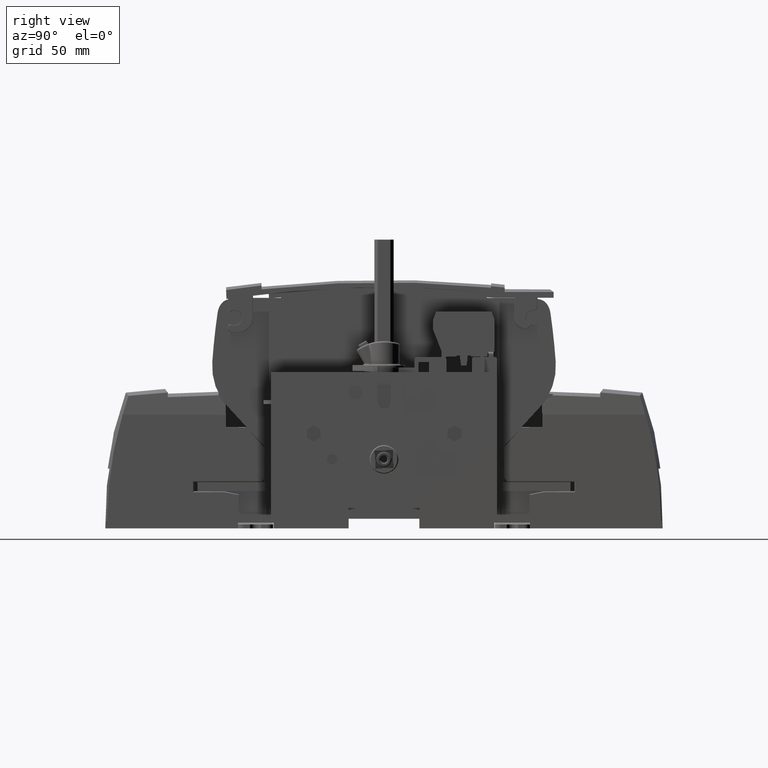
[diagram: clean part render]
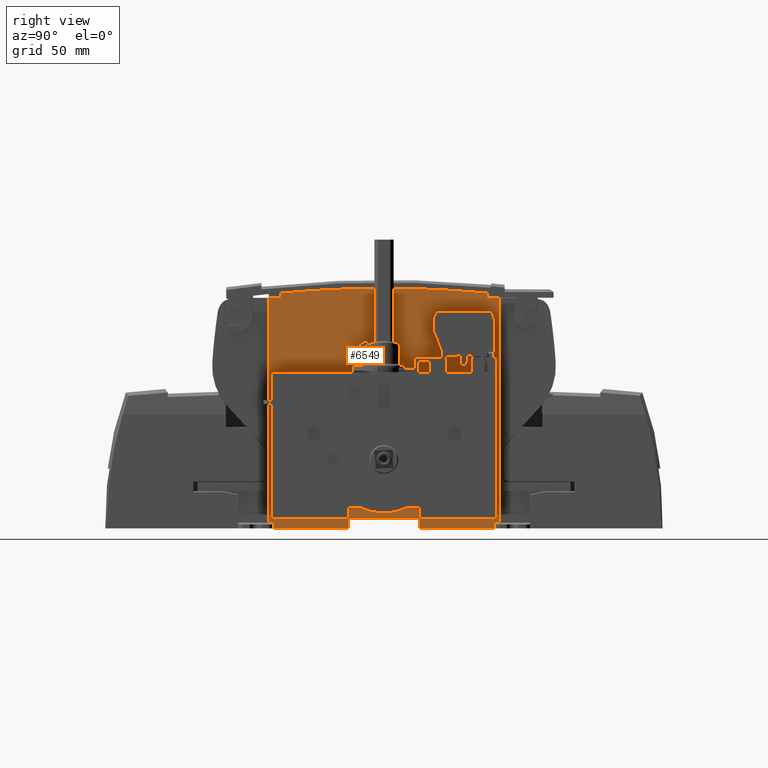
[diagram: same view with one face highlighted and labeled with its STEP entity id]
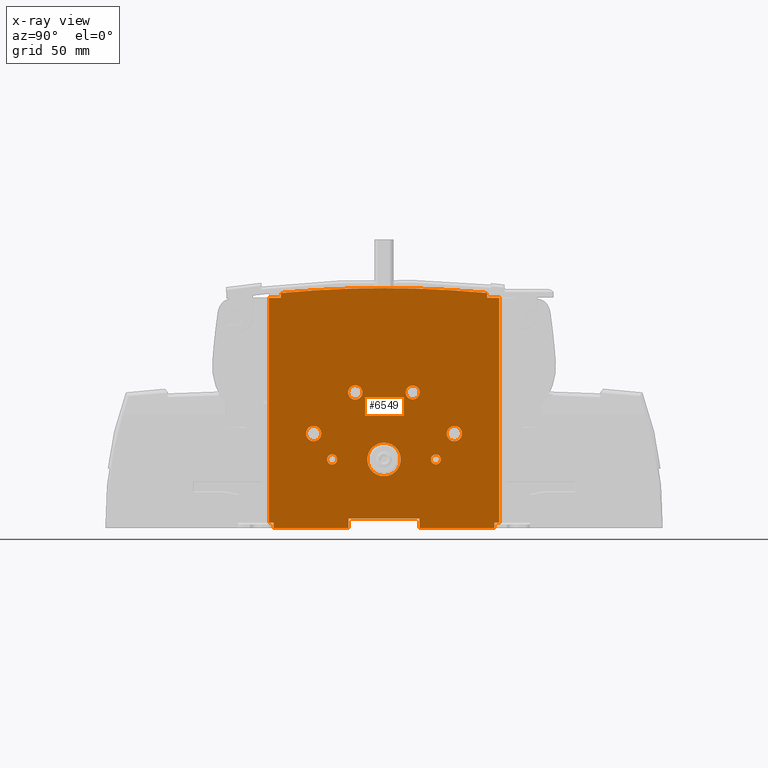
[diagram: x-ray of the same camera — body ghosted, the highlighted face saturated]
A machine part, right view. The second image highlights one B-rep face of the part: STEP entity #6549.
The next image is the same camera in x-ray: the body ghosted, the highlighted face saturated — about 0% of this face is hidden behind the body in this view.
In plain terms, the highlighted planar face has unit normal (1, 0, 0).
Its self-contained STEP definition (entity closure, byte-faithful):
#1403=PLANE('',#48421);
#6549=ADVANCED_FACE('',(#8898,#8899,#8900,#8901,#8902,#8903,#8904,#8905),
#1403,.T.);
#8351=CIRCLE('',#48412,566.856628699517);
#8352=CIRCLE('',#48413,566.856628699517);
#8353=CIRCLE('',#48414,2.65);
#8354=CIRCLE('',#48415,8.75);
#8355=CIRCLE('',#48416,3.65);
#8356=CIRCLE('',#48417,2.6);
#8357=CIRCLE('',#48418,4.);
#8358=CIRCLE('',#48419,3.75);
#8359=CIRCLE('',#48420,4.);
#8898=FACE_BOUND('',#10725,.T.);
#8899=FACE_BOUND('',#10726,.T.);
#8900=FACE_BOUND('',#10727,.T.);
#8901=FACE_BOUND('',#10728,.T.);
#8902=FACE_BOUND('',#10729,.T.);
#8903=FACE_BOUND('',#10730,.T.);
#8904=FACE_BOUND('',#10731,.T.);
#8905=FACE_BOUND('',#10732,.T.);
#10725=EDGE_LOOP('',(#20058,#20059,#20060,#20061,#20062,#20063,#20064,#20065,
#20066,#20067,#20068,#20069,#20070,#20071,#20072,#20073,#20074));
#10726=EDGE_LOOP('',(#20075));
#10727=EDGE_LOOP('',(#20076));
#10728=EDGE_LOOP('',(#20077));
#10729=EDGE_LOOP('',(#20078));
#10730=EDGE_LOOP('',(#20079));
#10731=EDGE_LOOP('',(#20080));
#10732=EDGE_LOOP('',(#20081));
#20058=ORIENTED_EDGE('',*,*,#33797,.T.);
#20059=ORIENTED_EDGE('',*,*,#33551,.T.);
#20060=ORIENTED_EDGE('',*,*,#33760,.T.);
#20061=ORIENTED_EDGE('',*,*,#33564,.T.);
#20062=ORIENTED_EDGE('',*,*,#33581,.T.);
#20063=ORIENTED_EDGE('',*,*,#33597,.F.);
#20064=ORIENTED_EDGE('',*,*,#33578,.F.);
#20065=ORIENTED_EDGE('',*,*,#33557,.F.);
#20066=ORIENTED_EDGE('',*,*,#33555,.F.);
#20067=ORIENTED_EDGE('',*,*,#33542,.F.);
#20068=ORIENTED_EDGE('',*,*,#33771,.F.);
#20069=ORIENTED_EDGE('',*,*,#33722,.F.);
#20070=ORIENTED_EDGE('',*,*,#33798,.F.);
#20071=ORIENTED_EDGE('',*,*,#33799,.F.);
#20072=ORIENTED_EDGE('',*,*,#33800,.T.);
#20073=ORIENTED_EDGE('',*,*,#33801,.T.);
#20074=ORIENTED_EDGE('',*,*,#33682,.T.);
#20075=ORIENTED_EDGE('',*,*,#33802,.T.);
#20076=ORIENTED_EDGE('',*,*,#33803,.F.);
#20077=ORIENTED_EDGE('',*,*,#33804,.F.);
#20078=ORIENTED_EDGE('',*,*,#33805,.F.);
#20079=ORIENTED_EDGE('',*,*,#33806,.F.);
#20080=ORIENTED_EDGE('',*,*,#33807,.T.);
#20081=ORIENTED_EDGE('',*,*,#33808,.F.);
#27848=VERTEX_POINT('',#73235);
#27849=VERTEX_POINT('',#73237);
#27855=VERTEX_POINT('',#73252);
#27856=VERTEX_POINT('',#73254);
#27859=VERTEX_POINT('',#73262);
#27860=VERTEX_POINT('',#73266);
#27863=VERTEX_POINT('',#73276);
#27864=VERTEX_POINT('',#73278);
#27875=VERTEX_POINT('',#73308);
#27876=VERTEX_POINT('',#73312);
#27949=VERTEX_POINT('',#73508);
#27950=VERTEX_POINT('',#73510);
#27973=VERTEX_POINT('',#73588);
#27974=VERTEX_POINT('',#73590);
#28013=VERTEX_POINT('',#73787);
#28014=VERTEX_POINT('',#73789);
#28015=VERTEX_POINT('',#73791);
#28016=VERTEX_POINT('',#73794);
#28017=VERTEX_POINT('',#73796);
#28018=VERTEX_POINT('',#73798);
#28019=VERTEX_POINT('',#73800);
#28020=VERTEX_POINT('',#73802);
#28021=VERTEX_POINT('',#73804);
#28022=VERTEX_POINT('',#73806);
#33542=EDGE_CURVE('',#27848,#27849,#39182,.T.);
#33551=EDGE_CURVE('',#27856,#27855,#39191,.T.);
#33555=EDGE_CURVE('',#27849,#27859,#39195,.T.);
#33557=EDGE_CURVE('',#27859,#27860,#39197,.T.);
#33564=EDGE_CURVE('',#27863,#27864,#39204,.T.);
#33578=EDGE_CURVE('',#27860,#27875,#39218,.T.);
#33581=EDGE_CURVE('',#27864,#27876,#39221,.T.);
#33597=EDGE_CURVE('',#27875,#27876,#39236,.T.);
#33682=EDGE_CURVE('',#27950,#27949,#39309,.T.);
#33722=EDGE_CURVE('',#27973,#27974,#39344,.T.);
#33760=EDGE_CURVE('',#27855,#27863,#39374,.T.);
#33771=EDGE_CURVE('',#27974,#27848,#39383,.T.);
#33797=EDGE_CURVE('',#27949,#27856,#39405,.T.);
#33798=EDGE_CURVE('',#28013,#27973,#39406,.T.);
#33799=EDGE_CURVE('',#28014,#28013,#8351,.T.);
#33800=EDGE_CURVE('',#28014,#28015,#8352,.T.);
#33801=EDGE_CURVE('',#28015,#27950,#39407,.T.);
#33802=EDGE_CURVE('',#28016,#28016,#8353,.T.);
#33803=EDGE_CURVE('',#28017,#28017,#8354,.T.);
#33804=EDGE_CURVE('',#28018,#28018,#8355,.T.);
#33805=EDGE_CURVE('',#28019,#28019,#8356,.T.);
#33806=EDGE_CURVE('',#28020,#28020,#8357,.T.);
#33807=EDGE_CURVE('',#28021,#28021,#8358,.T.);
#33808=EDGE_CURVE('',#28022,#28022,#8359,.T.);
#39182=LINE('',#73236,#44255);
#39191=LINE('',#73253,#44264);
#39195=LINE('',#73261,#44268);
#39197=LINE('',#73265,#44270);
#39204=LINE('',#73279,#44277);
#39218=LINE('',#73307,#44291);
#39221=LINE('',#73313,#44294);
#39236=LINE('',#73346,#44309);
#39309=LINE('',#73509,#44382);
#39344=LINE('',#73589,#44417);
#39374=LINE('',#73708,#44447);
#39383=LINE('',#73732,#44456);
#39405=LINE('',#73785,#44478);
#39406=LINE('',#73786,#44479);
#39407=LINE('',#73792,#44480);
#44255=VECTOR('',#56245,1.);
#44264=VECTOR('',#56256,1.);
#44268=VECTOR('',#56262,1.);
#44270=VECTOR('',#56266,1.);
#44277=VECTOR('',#56277,1.);
#44291=VECTOR('',#56299,1.);
#44294=VECTOR('',#56304,1.);
#44309=VECTOR('',#56333,1.);
#44382=VECTOR('',#56462,1.);
#44417=VECTOR('',#56531,1.);
#44447=VECTOR('',#56653,1.);
#44456=VECTOR('',#56682,1.);
#44478=VECTOR('',#56726,1.);
#44479=VECTOR('',#56727,1.);
#44480=VECTOR('',#56732,1.);
#48412=AXIS2_PLACEMENT_3D('',#73788,#56728,#56729);
#48413=AXIS2_PLACEMENT_3D('',#73790,#56730,#56731);
#48414=AXIS2_PLACEMENT_3D('',#73793,#56733,#56734);
#48415=AXIS2_PLACEMENT_3D('',#73795,#56735,#56736);
#48416=AXIS2_PLACEMENT_3D('',#73797,#56737,#56738);
#48417=AXIS2_PLACEMENT_3D('',#73799,#56739,#56740);
#48418=AXIS2_PLACEMENT_3D('',#73801,#56741,#56742);
#48419=AXIS2_PLACEMENT_3D('',#73803,#56743,#56744);
#48420=AXIS2_PLACEMENT_3D('',#73805,#56745,#56746);
#48421=AXIS2_PLACEMENT_3D('',#73807,#56747,#56748);
#56245=DIRECTION('',(0.,-1.,0.));
#56256=DIRECTION('',(0.,1.,0.));
#56262=DIRECTION('',(0.,0.,-1.));
#56266=DIRECTION('',(0.,-1.,2.22044604925025E-016));
#56277=DIRECTION('',(0.,1.,2.22044604925025E-016));
#56299=DIRECTION('',(0.,0.,1.));
#56304=DIRECTION('',(0.,0.,1.));
#56333=DIRECTION('',(0.,-1.,-3.75013847419274E-016));
#56462=DIRECTION('',(0.,-1.,0.));
#56531=DIRECTION('',(0.,1.,0.));
#56653=DIRECTION('',(0.,0.,-1.));
#56682=DIRECTION('',(0.,0.,-1.));
#56726=DIRECTION('',(0.,0.,-1.));
#56727=DIRECTION('',(0.,-2.09215462833515E-013,-1.));
#56728=DIRECTION('',(-1.,0.,0.));
#56729=DIRECTION('',(0.,-1.,-9.79280269838452E-017));
#56730=DIRECTION('',(1.,0.,0.));
#56731=DIRECTION('',(0.,1.,-9.79280269838452E-017));
#56732=DIRECTION('',(0.,2.09215462833515E-013,-1.));
#56733=DIRECTION('',(-1.,0.,0.));
#56734=DIRECTION('',(0.,-1.,-6.12323399573677E-017));
#56735=DIRECTION('',(1.,0.,0.));
#56736=DIRECTION('',(0.,0.,-1.));
#56737=DIRECTION('',(1.,0.,0.));
#56738=DIRECTION('',(0.,1.,0.));
#56739=DIRECTION('',(1.,0.,0.));
#56740=DIRECTION('',(0.,1.,-1.83697019872103E-016));
#56741=DIRECTION('',(1.,0.,0.));
#56742=DIRECTION('',(0.,0.999999999999999,0.));
#56743=DIRECTION('',(-1.,0.,0.));
#56744=DIRECTION('',(0.,-1.,0.));
#56745=DIRECTION('',(1.,0.,0.));
#56746=DIRECTION('',(0.,1.,0.));
#56747=DIRECTION('',(1.,0.,0.));
#56748=DIRECTION('',(0.,0.,-1.));
#73235=CARTESIAN_POINT('',(75.,60.2,-33.));
#73236=CARTESIAN_POINT('',(75.,18.5030338257067,-33.));
#73237=CARTESIAN_POINT('',(75.,57.7,-33.));
#73252=CARTESIAN_POINT('',(75.,-57.7,-33.));
#73253=CARTESIAN_POINT('',(75.,-69.5,-33.));
#73254=CARTESIAN_POINT('',(75.,-60.2,-33.));
#73261=CARTESIAN_POINT('',(75.,57.7,-31.));
#73262=CARTESIAN_POINT('',(75.,57.7,-36.));
#73265=CARTESIAN_POINT('',(75.,62.5,-36.));
#73266=CARTESIAN_POINT('',(75.,18.5030338257067,-36.));
#73276=CARTESIAN_POINT('',(75.,-57.7,-36.));
#73278=CARTESIAN_POINT('',(75.,-18.5030338257066,-36.));
#73279=CARTESIAN_POINT('',(75.,-62.5,-36.));
#73307=CARTESIAN_POINT('',(75.,18.5030338257067,60.8279400900079));
#73308=CARTESIAN_POINT('',(75.,18.5030338257067,-31.));
#73312=CARTESIAN_POINT('',(75.,-18.5030338257066,-31.));
#73313=CARTESIAN_POINT('',(75.,-18.5030338257066,60.8279400900079));
#73346=CARTESIAN_POINT('',(75.,18.5030338257067,-31.));
#73508=CARTESIAN_POINT('',(75.,-60.2,84.4123947148));
#73509=CARTESIAN_POINT('',(75.,-53.7999999999991,84.4123947148));
#73510=CARTESIAN_POINT('',(75.,-53.7999999999991,84.4123947148));
#73588=CARTESIAN_POINT('',(75.,53.7999999999991,84.4123947148));
#73589=CARTESIAN_POINT('',(75.,53.7999999999991,84.4123947148));
#73590=CARTESIAN_POINT('',(75.,60.2,84.4123947148));
#73708=CARTESIAN_POINT('',(75.,-57.7,-33.));
#73732=CARTESIAN_POINT('',(75.,60.2,60.8279400900079));
#73785=CARTESIAN_POINT('',(75.,-60.2,60.8279400900079));
#73786=CARTESIAN_POINT('',(75.,53.8,86.9330302813814));
#73787=CARTESIAN_POINT('',(75.,53.7999999999993,86.9330302813814));
#73788=CARTESIAN_POINT('',(75.,-0.0852995804322177,-477.356622281652));
#73789=CARTESIAN_POINT('',(75.,-3.48013284856563E-013,89.5));
#73790=CARTESIAN_POINT('',(75.,0.0852995804322642,-477.356622281652));
#73791=CARTESIAN_POINT('',(75.,-53.7999999999993,86.9330302813814));
#73792=CARTESIAN_POINT('',(75.,-53.8,86.9330302813814));
#73793=CARTESIAN_POINT('',(75.,-27.1,0.));
#73794=CARTESIAN_POINT('',(75.,-29.75,-1.62265700887024E-016));
#73795=CARTESIAN_POINT('',(75.,2.32175390024736E-014,0.));
#73796=CARTESIAN_POINT('',(75.,2.32175390024736E-014,-8.75));
#73797=CARTESIAN_POINT('',(75.,15.0000000000003,35.));
#73798=CARTESIAN_POINT('',(75.,18.6500000000003,35.));
#73799=CARTESIAN_POINT('',(75.,27.1,0.));
#73800=CARTESIAN_POINT('',(75.,29.7,-4.77612251667468E-016));
#73801=CARTESIAN_POINT('',(75.,-36.75,13.5));
#73802=CARTESIAN_POINT('',(75.,-32.75,13.5));
#73803=CARTESIAN_POINT('',(75.,-15.0000000000003,35.));
#73804=CARTESIAN_POINT('',(75.,-18.7500000000003,35.));
#73805=CARTESIAN_POINT('',(75.,36.7499999999982,13.5));
#73806=CARTESIAN_POINT('',(75.,40.7499999999982,13.5));
#73807=CARTESIAN_POINT('',(75.,18.5030338257067,-31.));